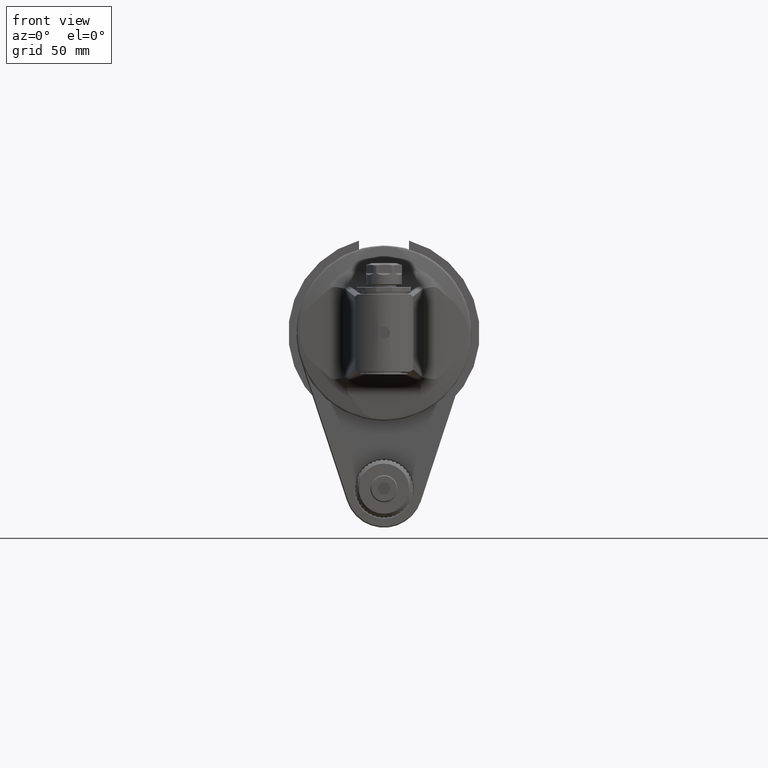
[diagram: clean part render]
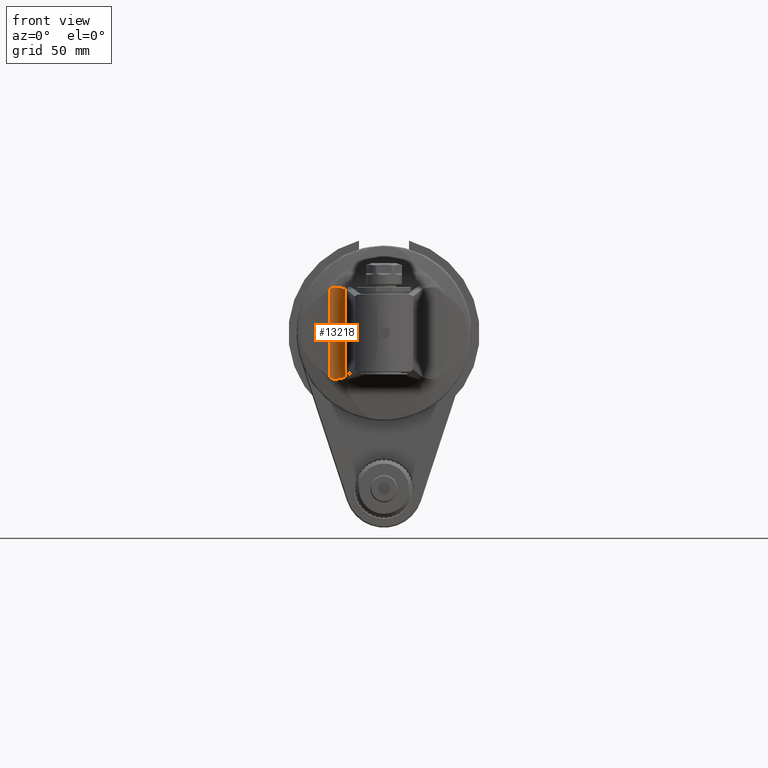
[diagram: same view with one face highlighted and labeled with its STEP entity id]
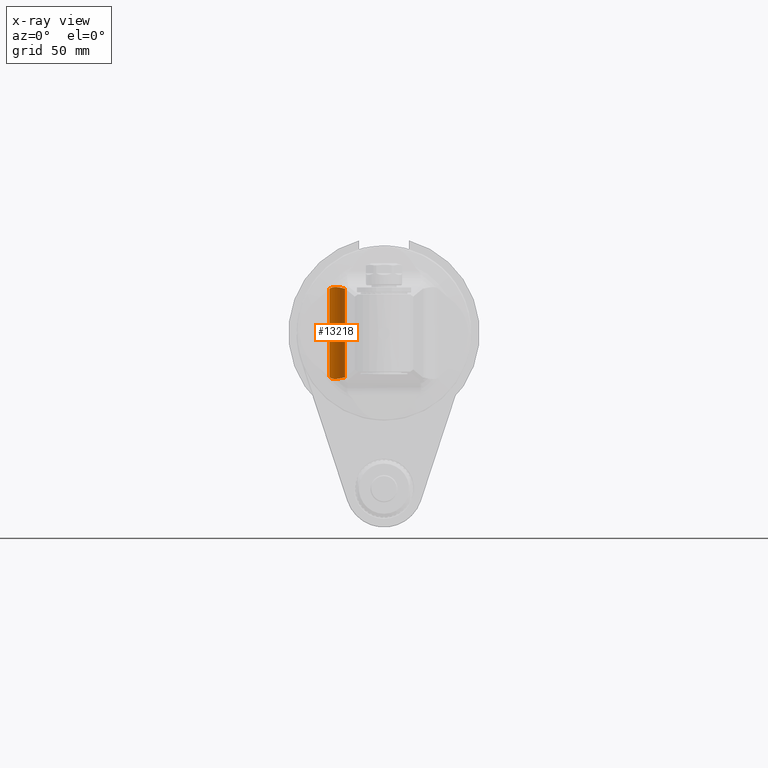
[diagram: x-ray of the same camera — body ghosted, the highlighted face saturated]
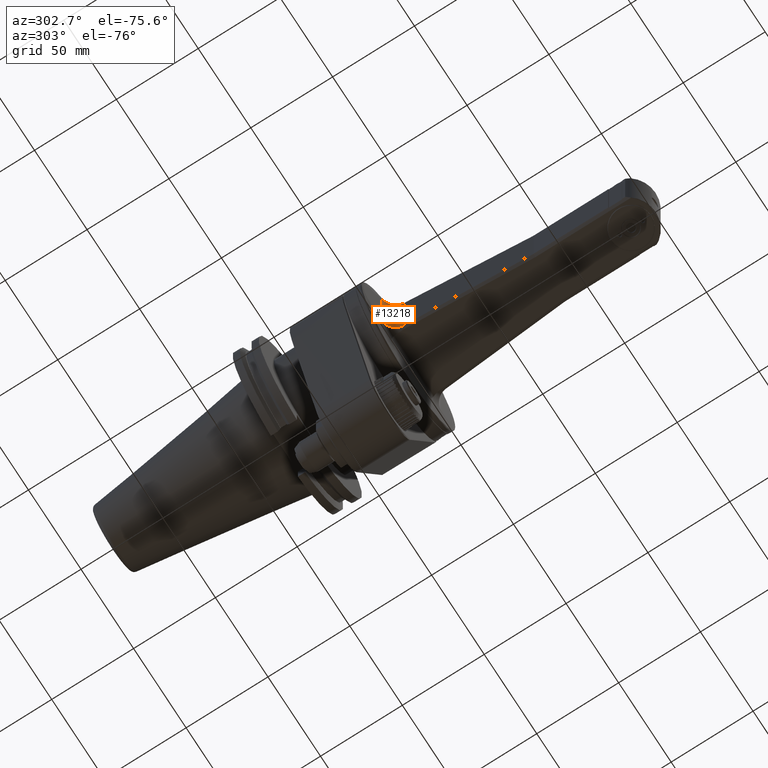
[diagram: same view with one face highlighted and labeled with its STEP entity id]
A machine part, front view. The second image highlights one B-rep face of the part: STEP entity #13218.
The next image is the same camera in x-ray: the body ghosted, the highlighted face saturated — about 0% of this face is hidden behind the body in this view.
A second angle (auxiliary view) of the same face is appended — the face is thin or edge-on in the first view.
In plain terms, the highlighted cylindrical surface (edge-blend (fillet) strip) has radius 9 mm, axis along (-0, 0, -1).
Its self-contained STEP definition (entity closure, byte-faithful):
#977=FACE_OUTER_BOUND('',#1769,.T.);
#1769=EDGE_LOOP('',(#9337,#9338,#9339,#9340,#9341,#9342));
#3163=LINE('',#20509,#4328);
#3164=LINE('',#20511,#4329);
#4328=VECTOR('',#15742,45.29175520861);
#4329=VECTOR('',#15745,45.68785896779);
#5441=B_SPLINE_CURVE_WITH_KNOTS('',3,(#19613,#19614,#19615,#19616,#19617,
#19618,#19619,#19620,#19621,#19622,#19623,#19624,#19625,#19626,#19627,#19628),
 .UNSPECIFIED.,.F.,.F.,(4,2,2,2,2,2,2,4),(-13.9248686607081,-13.8315894144772,
-13.5235756941433,-13.2194426556475,-12.9990481172475,-12.8385654423057,
-12.720577698522,-12.6421465978209),.UNSPECIFIED.);
#5442=B_SPLINE_CURVE_WITH_KNOTS('',3,(#19631,#19632,#19633,#19634),
 .UNSPECIFIED.,.F.,.F.,(4,4),(-5.74970009084415,-5.67634960176569),
 .UNSPECIFIED.);
#5470=B_SPLINE_CURVE_WITH_KNOTS('',3,(#20434,#20435,#20436,#20437),
 .UNSPECIFIED.,.F.,.F.,(4,4),(0.0095490055881713,0.0828994946666361),
 .UNSPECIFIED.);
#5471=B_SPLINE_CURVE_WITH_KNOTS('',3,(#20440,#20441,#20442,#20443,#20444,
#20445,#20446,#20447,#20448,#20449,#20450,#20451,#20452,#20453,#20454,#20455),
 .UNSPECIFIED.,.F.,.F.,(4,2,2,2,2,2,2,4),(-6.5040631980054,-6.47691640641453,
-6.27187423191076,-6.00843378381978,-5.67228386439015,-5.13028070956291,
-4.65776376729255,-4.58064173216533),.UNSPECIFIED.);
#5617=VERTEX_POINT('',#19531);
#5620=VERTEX_POINT('',#19560);
#5621=VERTEX_POINT('',#19630);
#5712=VERTEX_POINT('',#20425);
#5713=VERTEX_POINT('',#20427);
#5714=VERTEX_POINT('',#20439);
#6959=EDGE_CURVE('',#5617,#5620,#5441,.T.);
#6960=EDGE_CURVE('',#5617,#5621,#5442,.T.);
#7107=EDGE_CURVE('',#5713,#5712,#5470,.T.);
#7108=EDGE_CURVE('',#5714,#5712,#5471,.T.);
#7110=EDGE_CURVE('',#5620,#5714,#3163,.T.);
#7111=EDGE_CURVE('',#5621,#5713,#3164,.T.);
#9337=ORIENTED_EDGE('',*,*,#7107,.F.);
#9338=ORIENTED_EDGE('',*,*,#7111,.F.);
#9339=ORIENTED_EDGE('',*,*,#6960,.F.);
#9340=ORIENTED_EDGE('',*,*,#6959,.T.);
#9341=ORIENTED_EDGE('',*,*,#7110,.T.);
#9342=ORIENTED_EDGE('',*,*,#7108,.T.);
#12998=CYLINDRICAL_SURFACE('',#14129,9.);
#13218=ADVANCED_FACE('',(#977),#12998,.F.);
#14129=AXIS2_PLACEMENT_3D('',#20510,#15743,#15744);
#15742=DIRECTION('',(0.,0.,-1.));
#15743=DIRECTION('center_axis',(0.,0.,-1.));
#15744=DIRECTION('ref_axis',(0.095845752520218,0.995396198367179,0.));
#15745=DIRECTION('',(0.,0.,-1.));
#19531=CARTESIAN_POINT('',(-20.07700119133,126.607833755,22.85662057231));
#19560=CARTESIAN_POINT('',(-28.11510372757,134.2332510899,22.64587760431));
#19613=CARTESIAN_POINT('Ctrl Pts',(-20.0770011913346,126.607833754999,22.8566205723169));
#19614=CARTESIAN_POINT('Ctrl Pts',(-20.1296180419224,126.959128132412,22.8496003038635));
#19615=CARTESIAN_POINT('Ctrl Pts',(-20.2029274602457,127.306612402257,22.851525234438));
#19616=CARTESIAN_POINT('Ctrl Pts',(-20.6051199878493,128.777469272858,22.8942099423808));
#19617=CARTESIAN_POINT('Ctrl Pts',(-21.1240016520519,129.812841259772,23.0146368367157));
#19618=CARTESIAN_POINT('Ctrl Pts',(-22.4803226961072,131.601424210653,23.3123742138115));
#19619=CARTESIAN_POINT('Ctrl Pts',(-23.2549069972488,132.283478382516,23.4745874034651));
#19620=CARTESIAN_POINT('Ctrl Pts',(-24.6022625054607,133.168621867109,23.6319791526703));
#19621=CARTESIAN_POINT('Ctrl Pts',(-25.1669263686361,133.448527669997,23.6598344535141));
#19622=CARTESIAN_POINT('Ctrl Pts',(-26.097050154371,133.811591114421,23.5809077744029));
#19623=CARTESIAN_POINT('Ctrl Pts',(-26.4873242197573,133.932020101546,23.5075253315637));
#19624=CARTESIAN_POINT('Ctrl Pts',(-27.1438459420499,134.090512511184,23.2745437390979));
#19625=CARTESIAN_POINT('Ctrl Pts',(-27.404562566812,134.139641376498,23.1469235280894));
#19626=CARTESIAN_POINT('Ctrl Pts',(-27.81539974582,134.200856477477,22.8849964708961));
#19627=CARTESIAN_POINT('Ctrl Pts',(-27.9694937056897,134.21923043939,22.7697343354979));
#19628=CARTESIAN_POINT('Ctrl Pts',(-28.1151037275777,134.233251089806,22.6458776043084));
#19630=CARTESIAN_POINT('',(-19.9971760257,125.8662178448,22.8439294839));
#19631=CARTESIAN_POINT('Ctrl Pts',(-20.0770011913346,126.607833754999,22.8566205723015));
#19632=CARTESIAN_POINT('Ctrl Pts',(-20.0397223747018,126.358943170834,22.8615944028805));
#19633=CARTESIAN_POINT('Ctrl Pts',(-20.0132878606222,126.110824792983,22.8570783148712));
#19634=CARTESIAN_POINT('Ctrl Pts',(-19.9971760257103,125.8662178448,22.843929483889));
#20425=CARTESIAN_POINT('',(-20.07700119133,126.607833755,-22.85662057231));
#20427=CARTESIAN_POINT('',(-19.9971760257,125.8662178448,-22.8439294839));
#20434=CARTESIAN_POINT('Ctrl Pts',(-19.9971760257103,125.8662178448,-22.843929483889));
#20435=CARTESIAN_POINT('Ctrl Pts',(-20.0132863601111,126.110802012496,-22.8570770903075));
#20436=CARTESIAN_POINT('Ctrl Pts',(-20.0397227831054,126.358945897525,-22.8615943483903));
#20437=CARTESIAN_POINT('Ctrl Pts',(-20.0770011913346,126.607833754999,-22.8566205723015));
#20439=CARTESIAN_POINT('',(-28.11510372757,134.2332510899,-22.64587760431));
#20440=CARTESIAN_POINT('Ctrl Pts',(-28.1151037275777,134.233251089806,-22.6458776043084));
#20441=CARTESIAN_POINT('Ctrl Pts',(-28.0747896516603,134.229369285807,-22.6801689916683));
#20442=CARTESIAN_POINT('Ctrl Pts',(-28.0339948641215,134.225166639612,-22.7136568452712));
#20443=CARTESIAN_POINT('Ctrl Pts',(-27.6809159220068,134.186290519309,-22.9929295075052));
#20444=CARTESIAN_POINT('Ctrl Pts',(-27.3513008183572,134.133928441254,-23.1837372590475));
#20445=CARTESIAN_POINT('Ctrl Pts',(-26.5433269733543,133.951705658727,-23.5036087184476));
#20446=CARTESIAN_POINT('Ctrl Pts',(-26.0832985104688,133.810284160101,-23.587112567335));
#20447=CARTESIAN_POINT('Ctrl Pts',(-25.0609038288359,133.401169052626,-23.6614120717789));
#20448=CARTESIAN_POINT('Ctrl Pts',(-24.4743356385614,133.097536487414,-23.6222106192439));
#20449=CARTESIAN_POINT('Ctrl Pts',(-22.9834944604443,132.079869510166,-23.4327416646599));
#20450=CARTESIAN_POINT('Ctrl Pts',(-22.1105200600591,131.230182773005,-23.2318850203744));
#20451=CARTESIAN_POINT('Ctrl Pts',(-20.8150479098252,129.225243932003,-22.9451275474493));
#20452=CARTESIAN_POINT('Ctrl Pts',(-20.396306990865,128.198674776278,-22.8578395495259));
#20453=CARTESIAN_POINT('Ctrl Pts',(-20.134533010705,126.956895704534,-22.8518330295211));
#20454=CARTESIAN_POINT('Ctrl Pts',(-20.1031462803143,126.782390435091,-22.8531322308194));
#20455=CARTESIAN_POINT('Ctrl Pts',(-20.0770011913346,126.607833754999,-22.8566205723169));
#20509=CARTESIAN_POINT('',(-28.11510372757,134.2332510899,22.64587760431));
#20510=CARTESIAN_POINT('Origin',(-28.97771550025,125.2746853045,162.324));
#20511=CARTESIAN_POINT('',(-19.9971760257,125.8662178448,22.8439294839));